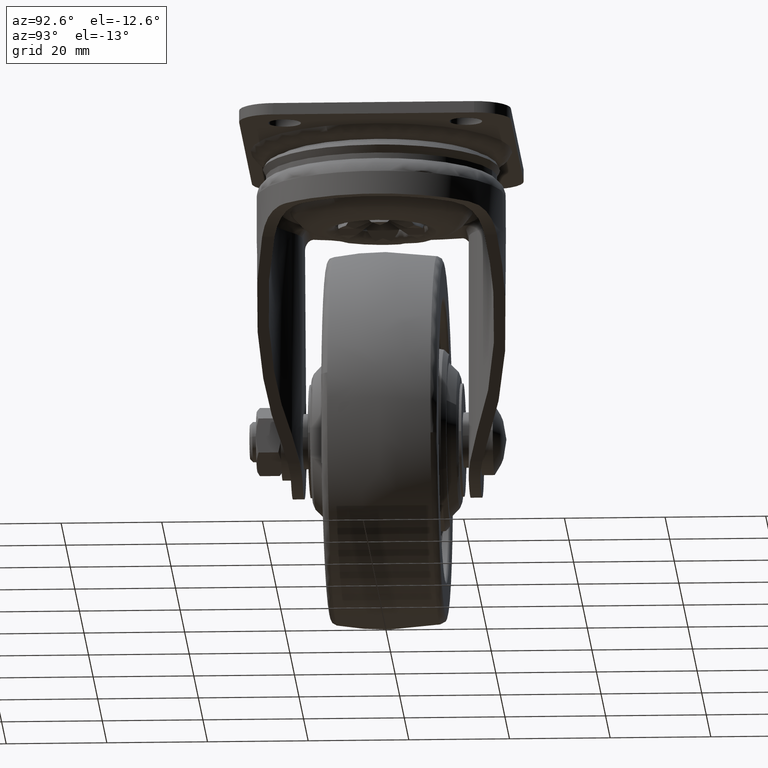
[diagram: clean part render]
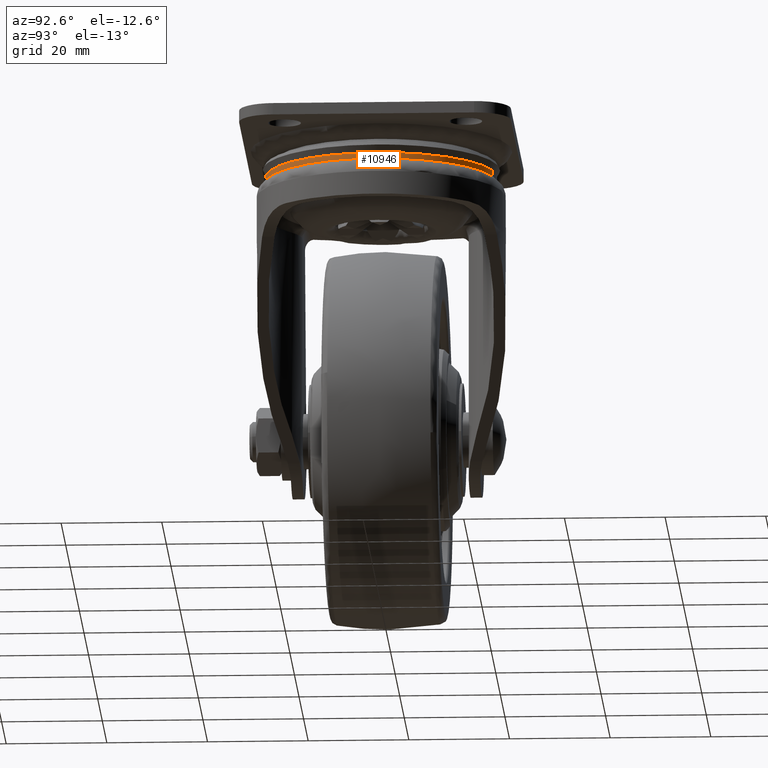
[diagram: same view with one face highlighted and labeled with its STEP entity id]
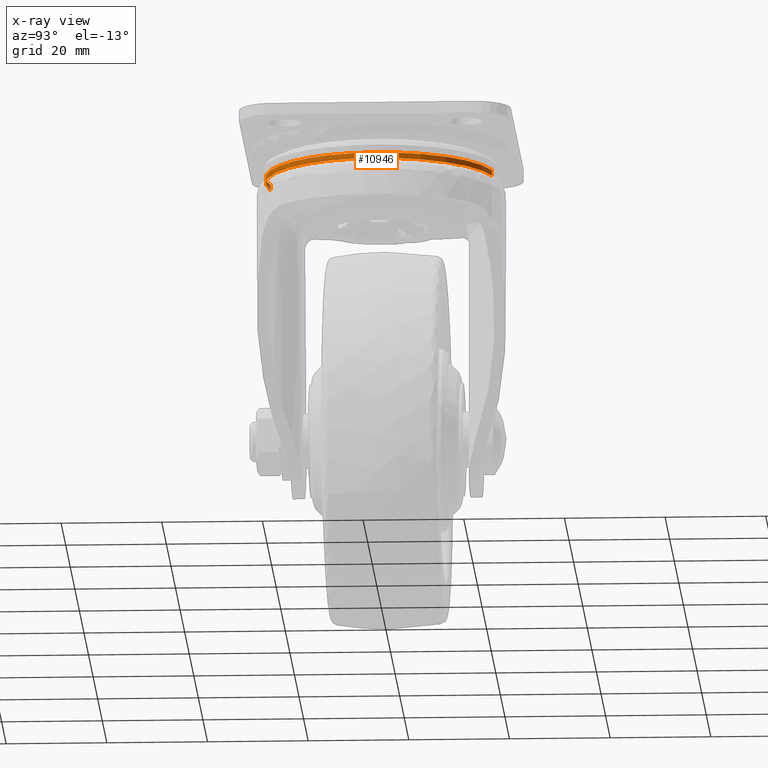
[diagram: x-ray of the same camera — body ghosted, the highlighted face saturated]
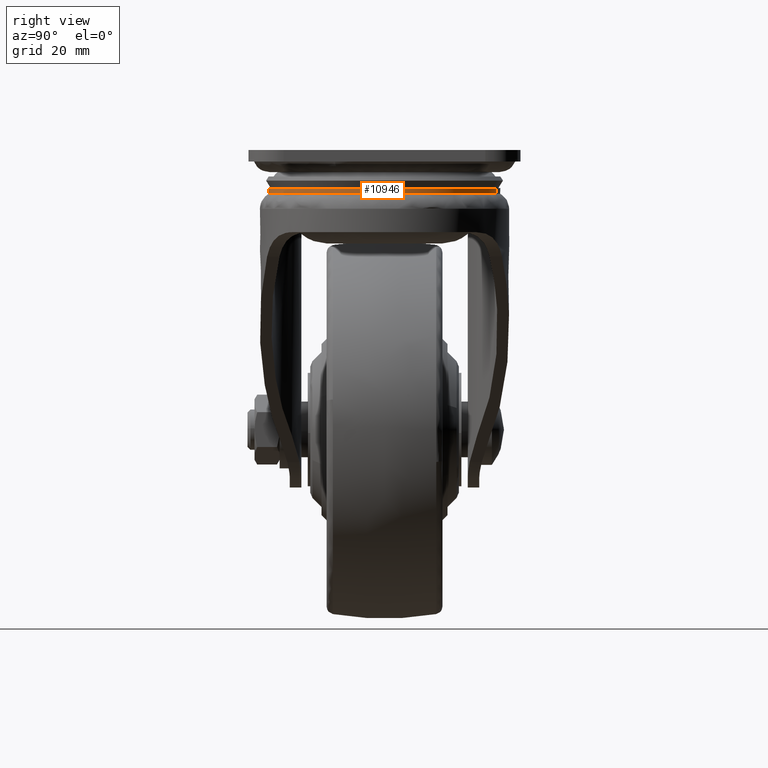
[diagram: same view with one face highlighted and labeled with its STEP entity id]
A machine part, auxiliary view. The second image highlights one B-rep face of the part: STEP entity #10946.
The next image is the same camera in x-ray: the body ghosted, the highlighted face saturated — about 1% of this face is hidden behind the body in this view.
A second angle (right view) of the same face is appended — the face is thin or edge-on in the first view.
In plain terms, the highlighted face is a freeform B-spline surface patch.
Its self-contained STEP definition (entity closure, byte-faithful):
#10790=CARTESIAN_POINT('',(-5.758718584403156,-22.267401291240880,-7.574999999999901));
#10791=VERTEX_POINT('',#10790);
#10807=CARTESIAN_POINT('',(23.0,0.0,-7.574999999999901));
#10808=VERTEX_POINT('',#10807);
#10809=CARTESIAN_POINT('',(23.0,0.0,-7.574999999999901));
#10810=CARTESIAN_POINT('',(23.000000000001037,-22.999999999995978,-7.574999999999901));
#10811=CARTESIAN_POINT('',(2.381155E-012,-22.999999999990781,-7.574999999999900));
#10812=CARTESIAN_POINT('',(-2.925958276001525,-22.999999999990116,-7.574999999999901));
#10813=CARTESIAN_POINT('',(-5.758718584403156,-22.267401291240887,-7.574999999999901));
#10821=(BOUNDED_CURVE()B_SPLINE_CURVE(2,(#10809,#10810,#10811,#10812,#10813),.UNSPECIFIED.,.F.,.U.)B_SPLINE_CURVE_WITH_KNOTS((3,2,3),(0.500000000000000,0.750000000000000,0.792726073129005),.UNSPECIFIED.)CURVE()GEOMETRIC_REPRESENTATION_ITEM()RATIONAL_B_SPLINE_CURVE((1.0,0.707106781186548,1.0,0.949943291655946,0.916996395962336))REPRESENTATION_ITEM(''));
#10822=EDGE_CURVE('',#10808,#10791,#10821,.T.);
#10824=CARTESIAN_POINT('',(5.758718584403156,22.267401291240880,-7.574999999999901));
#10825=VERTEX_POINT('',#10824);
#10826=CARTESIAN_POINT('',(5.758718584403156,22.267401291240887,-7.574999999999901));
#10827=CARTESIAN_POINT('',(22.999999999998664,17.808520508154313,-7.574999999999902));
#10828=CARTESIAN_POINT('',(23.0,0.0,-7.574999999999901));
#10836=(BOUNDED_CURVE()B_SPLINE_CURVE(2,(#10826,#10827,#10828),.UNSPECIFIED.,.F.,.U.)B_SPLINE_CURVE_WITH_KNOTS((3,3),(0.292726073129006,0.500000000000000),.UNSPECIFIED.)CURVE()GEOMETRIC_REPRESENTATION_ITEM()RATIONAL_B_SPLINE_CURVE((0.916996395962336,0.757163489530601,1.0))REPRESENTATION_ITEM(''));
#10837=EDGE_CURVE('',#10825,#10808,#10836,.T.);
#10863=CARTESIAN_POINT('',(5.758740093252152,22.267395728696471,-7.546870106861185));
#10864=CARTESIAN_POINT('',(12.860437969892169,20.430771779014471,-7.546870106861185));
#10865=CARTESIAN_POINT('',(19.064397781044590,15.805798176995470,-7.546870106861185));
#10866=CARTESIAN_POINT('',(23.066666021121520,9.011294992166743,-7.546870106861185));
#10867=CARTESIAN_POINT('',(24.104019678378471,1.342957783387862,-7.546870106861185));
#10868=CARTESIAN_POINT('',(20.430771779014471,-12.860437969892169,-7.546870106861185));
#10869=CARTESIAN_POINT('',(15.805798176995470,-19.064397781044590,-7.546870106861185));
#10870=CARTESIAN_POINT('',(9.011294992166743,-23.066666021121520,-7.546870106861185));
#10871=CARTESIAN_POINT('',(1.342957783387862,-24.104019678378471,-7.546870106861185));
#10872=CARTESIAN_POINT('',(-5.758740093252152,-22.267395728696471,-7.546870106861185));
#10873=CARTESIAN_POINT('',(5.758740093252152,22.267395728696471,-8.729028866015671));
#10874=CARTESIAN_POINT('',(12.860437969892169,20.430771779014471,-8.729028866015671));
#10875=CARTESIAN_POINT('',(19.064397781044590,15.805798176995470,-8.729028866015671));
#10876=CARTESIAN_POINT('',(23.066666021121520,9.011294992166743,-8.729028866015671));
#10877=CARTESIAN_POINT('',(24.104019678378471,1.342957783387862,-8.729028866015671));
#10878=CARTESIAN_POINT('',(20.430771779014471,-12.860437969892169,-8.729028866015671));
#10879=CARTESIAN_POINT('',(15.805798176995470,-19.064397781044590,-8.729028866015671));
#10880=CARTESIAN_POINT('',(9.011294992166743,-23.066666021121520,-8.729028866015671));
#10881=CARTESIAN_POINT('',(1.342957783387862,-24.104019678378471,-8.729028866015671));
#10882=CARTESIAN_POINT('',(-5.758740093252152,-22.267395728696471,-8.729028866015671));
#10883=B_SPLINE_SURFACE_WITH_KNOTS('',5,1,((#10863,#10873),(#10864,#10874),(#10865,#10875),(#10866,#10876),(#10867,#10877),(#10868,#10878),(#10869,#10879),(#10870,#10880),(#10871,#10881),(#10872,#10882)),.UNSPECIFIED.,.F.,.F.,.U.,(6,4,6),(2,2),(0.0,36.676729769575559,73.353459539151117),(0.0,1.0),.UNSPECIFIED.);
#10884=CARTESIAN_POINT('',(5.758711587024549,22.267403100869078,-8.699999999996166));
#10885=VERTEX_POINT('',#10884);
#10886=CARTESIAN_POINT('',(23.0,0.0,-8.699999999999900));
#10887=VERTEX_POINT('',#10886);
#10888=CARTESIAN_POINT('',(5.758711587024549,22.267403100869085,-8.699999999996166));
#10889=CARTESIAN_POINT('',(22.999999999997847,17.808526288471061,-8.699999999998031));
#10890=CARTESIAN_POINT('',(23.0,0.0,-8.699999999999900));
#10898=(BOUNDED_CURVE()B_SPLINE_CURVE(2,(#10888,#10889,#10890),.UNSPECIFIED.,.F.,.U.)B_SPLINE_CURVE_WITH_KNOTS((3,3),(0.292726022189069,0.500000000000000),.UNSPECIFIED.)CURVE()GEOMETRIC_REPRESENTATION_ITEM()RATIONAL_B_SPLINE_CURVE((0.916996474523887,0.757163429850753,1.0))REPRESENTATION_ITEM(''));
#10899=EDGE_CURVE('',#10885,#10887,#10898,.T.);
#10900=ORIENTED_EDGE('',*,*,#10899,.F.);
#10901=CARTESIAN_POINT('',(5.758718584403156,22.267401291240880,-7.574999999999901));
#10902=CARTESIAN_POINT('',(5.758711587024549,22.267403100869078,-8.699999999996166));
#10903=QUASI_UNIFORM_CURVE('',1,(#10901,#10902),.UNSPECIFIED.,.F.,.U.);
#10904=EDGE_CURVE('',#10825,#10885,#10903,.T.);
#10905=ORIENTED_EDGE('',*,*,#10904,.F.);
#10906=ORIENTED_EDGE('',*,*,#10837,.T.);
#10907=ORIENTED_EDGE('',*,*,#10822,.T.);
#10908=CARTESIAN_POINT('',(-5.758740172991677,-22.267396035815530,-8.699669207279007));
#10909=VERTEX_POINT('',#10908);
#10910=CARTESIAN_POINT('',(-5.758718584403156,-22.267401291240880,-7.574999999999901));
#10911=CARTESIAN_POINT('',(-5.758740172991677,-22.267396035815530,-8.699669207279007));
#10912=QUASI_UNIFORM_CURVE('',1,(#10910,#10911),.UNSPECIFIED.,.F.,.U.);
#10913=EDGE_CURVE('',#10791,#10909,#10912,.T.);
#10914=ORIENTED_EDGE('',*,*,#10913,.T.);
#10915=CARTESIAN_POINT('',(18.462903151910581,-13.715728460536470,-8.699446286205149));
#10916=VERTEX_POINT('',#10915);
#10917=CARTESIAN_POINT('',(18.462903151910581,-13.715728460536470,-8.699446286205149));
#10918=CARTESIAN_POINT('',(17.764595861805951,-14.655804145450590,-8.699860737192738));
#10919=CARTESIAN_POINT('',(16.177336169400860,-16.482704847347069,-8.699367281193188));
#10920=CARTESIAN_POINT('',(13.286361214255850,-18.908616455596331,-8.699319235778221));
#10921=CARTESIAN_POINT('',(10.303439680568079,-20.652952936817758,-8.699529622034602));
#10922=CARTESIAN_POINT('',(7.537228784710649,-21.775955123145302,-8.699522510060966));
#10923=CARTESIAN_POINT('',(4.633974983636339,-22.608523558556080,-8.699649367999335));
#10924=CARTESIAN_POINT('',(1.351804192676090,-23.064525255839239,-8.699401394821541));
#10925=CARTESIAN_POINT('',(-2.347652742741681,-22.967208701034931,-8.699805096462587));
#10926=CARTESIAN_POINT('',(-4.624999565908952,-22.560663576425760,-8.699710955316698));
#10927=CARTESIAN_POINT('',(-5.758740172991677,-22.267396035815530,-8.699669207279007));
#10928=B_SPLINE_CURVE_WITH_KNOTS('',3,(#10917,#10918,#10919,#10920,#10921,#10922,#10923,#10924,#10925,#10926,#10927),.UNSPECIFIED.,.F.,.U.,(4,1,1,1,1,1,1,1,4),(-2.806551E-009,3.513164373318180,7.239260732677188,11.284721755958710,13.839749557625060,16.181861866831010,20.333778845054500,23.740483004877770,27.253647113968121),.UNSPECIFIED.);
#10929=EDGE_CURVE('',#10916,#10909,#10928,.T.);
#10930=ORIENTED_EDGE('',*,*,#10929,.F.);
#10931=CARTESIAN_POINT('',(23.0,0.0,-8.699999999999900));
#10932=CARTESIAN_POINT('',(22.999999850877824,-7.608289035060460,-8.699723143102524));
#10933=CARTESIAN_POINT('',(18.462903151910584,-13.715728460536472,-8.699446286205149));
#10941=(BOUNDED_CURVE()B_SPLINE_CURVE(2,(#10931,#10932,#10933),.UNSPECIFIED.,.F.,.U.)B_SPLINE_CURVE_WITH_KNOTS((3,3),(0.500000000000000,0.602859904650048),.UNSPECIFIED.)CURVE()GEOMETRIC_REPRESENTATION_ITEM()RATIONAL_B_SPLINE_CURVE((1.0,0.879492125760811,0.858147679152205))REPRESENTATION_ITEM(''));
#10942=EDGE_CURVE('',#10887,#10916,#10941,.T.);
#10943=ORIENTED_EDGE('',*,*,#10942,.F.);
#10944=EDGE_LOOP('',(#10900,#10905,#10906,#10907,#10914,#10930,#10943));
#10945=FACE_OUTER_BOUND('',#10944,.T.);
#10946=ADVANCED_FACE('',(#10945),#10883,.T.);